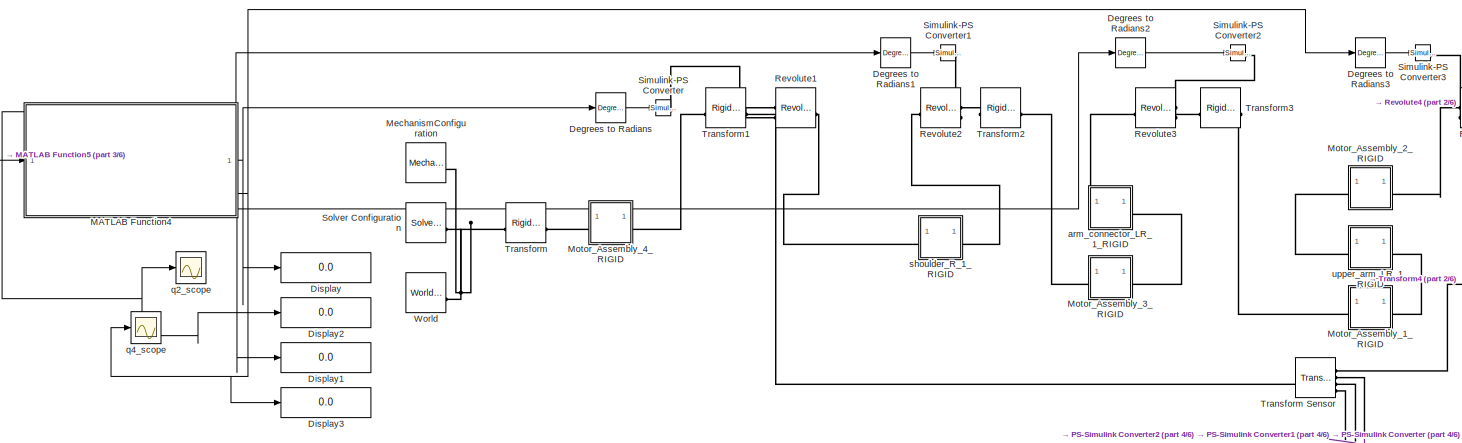
[diagram: root canvas - part 1/6, top center region]
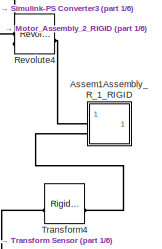
[diagram: root canvas - part 2/6, top right region]
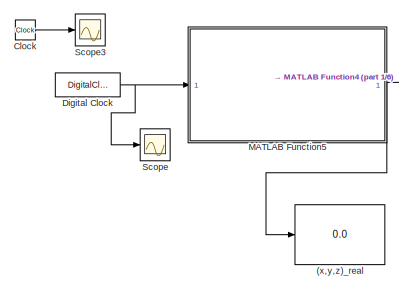
[diagram: root canvas - part 3/6, top left region]
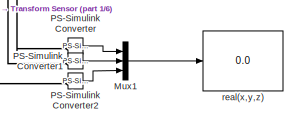
[diagram: root canvas - part 4/6, middle right region]
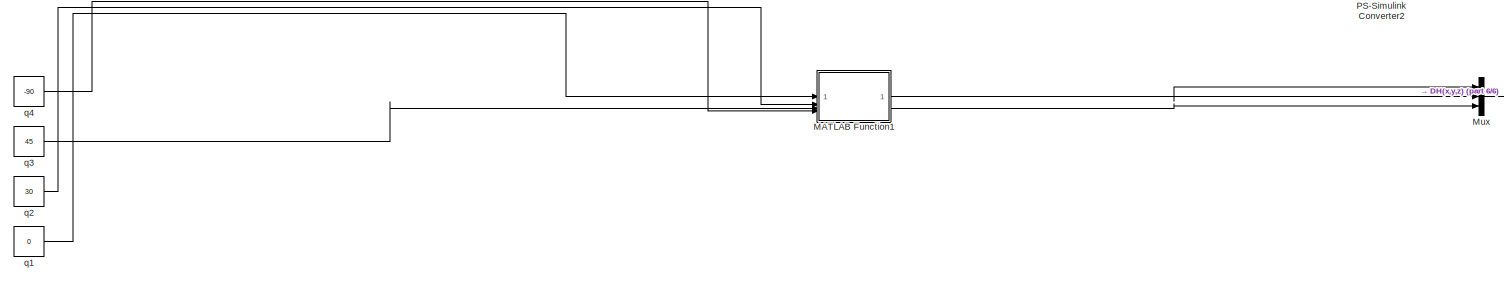
[diagram: root canvas - part 5/6, bottom center region]
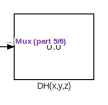
[diagram: root canvas - part 6/6, bottom right region]
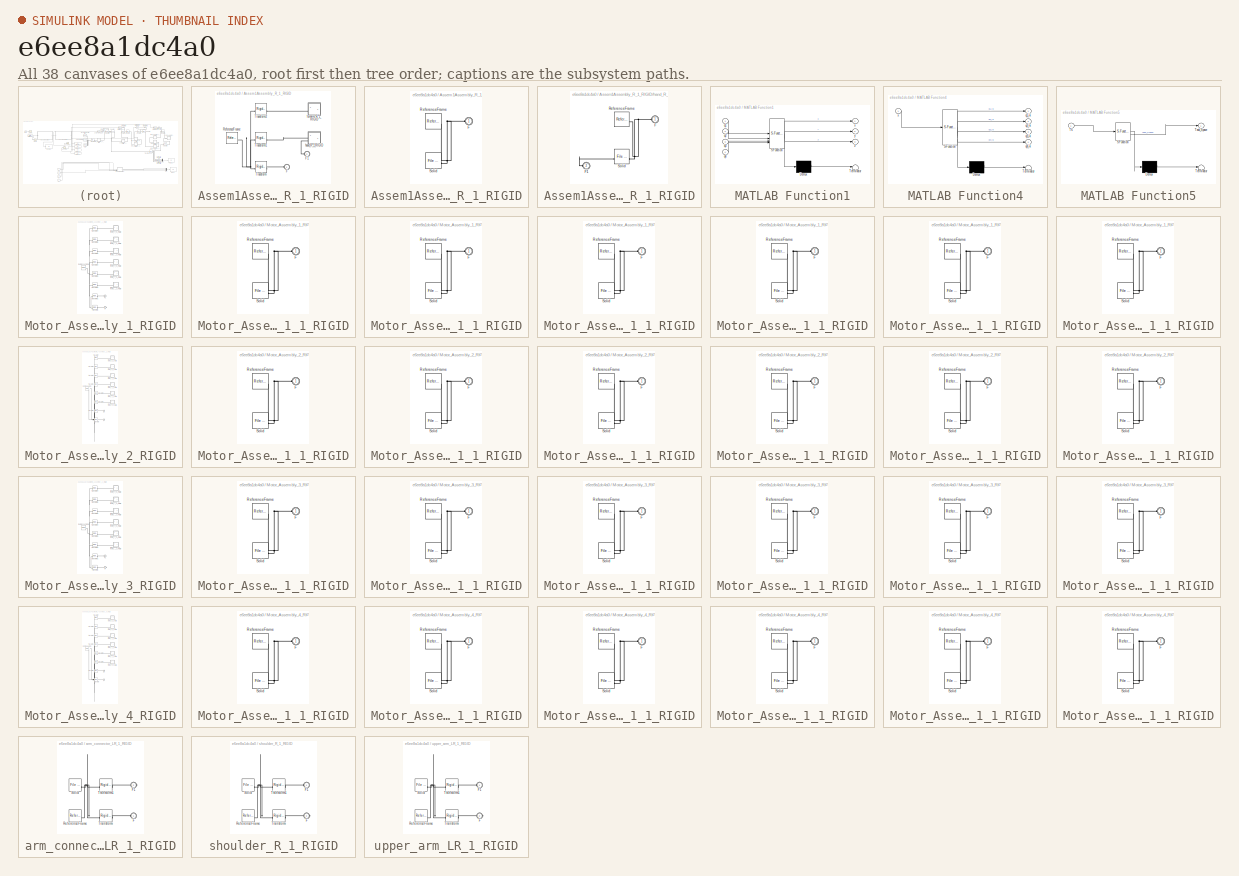
[diagram: thumbnail index - all 38 canvases of the model, root first then tree order]
MODEL slx_e6ee8a1dc4a0
KIND model
CONFIG AbsTol = auto
CONFIG EnableMultiTasking = off
CONFIG FixedStep = auto
CONFIG MaxStep = auto
CONFIG MinStep = auto
CONFIG RelTol = 1e-3
CONFIG SampleTimeConstraint = Unconstrained
CONFIG SolverName = VariableStepAuto
CONFIG StartTime = 0.0
CONFIG StopTime = 10
WORKSPACE source: external: MATLAB File  (data not in archive)
BLOCK [Display] (x,y,z)_real
  Decimation = 1
BLOCK [SubSystem] Assem1Assembly_R_1_RIGID
BLOCK [PMIOPort] Assem1Assembly_R_1_RIGID/F
  Side = Left
BLOCK [PMIOPort] Assem1Assembly_R_1_RIGID/F1
  Port = 2
  Side = Left
BLOCK [Reference] Assem1Assembly_R_1_RIGID/ReferenceFrame  REF=sm_lib/Frames and
Transforms/Reference
Frame
  SourceBlock = sm_lib/Frames and\nTransforms/Reference\nFrame
  SourceType = Reference\nFrame
BLOCK [Reference] Assem1Assembly_R_1_RIGID/Transform  REF=sm_lib/Frames and
Transforms/Rigid
Transform
  SourceBlock = sm_lib/Frames and\nTransforms/Rigid\nTransform
  SourceType = Rigid\nTransform
BLOCK [Reference] Assem1Assembly_R_1_RIGID/Transform1  REF=sm_lib/Frames and
Transforms/Rigid
Transform
  SourceBlock = sm_lib/Frames and\nTransforms/Rigid\nTransform
  SourceType = Rigid\nTransform
BLOCK [Reference] Assem1Assembly_R_1_RIGID/Transform2  REF=sm_lib/Frames and
Transforms/Rigid
Transform
  SourceBlock = sm_lib/Frames and\nTransforms/Rigid\nTransform
  SourceType = Rigid\nTransform
BLOCK [SubSystem] Assem1Assembly_R_1_RIGID/forearm_R_1_RIGID
BLOCK [PMIOPort] Assem1Assembly_R_1_RIGID/forearm_R_1_RIGID/F
  Side = Left
BLOCK [Reference] Assem1Assembly_R_1_RIGID/forearm_R_1_RIGID/ReferenceFrame  REF=sm_lib/Frames and
Transforms/Reference
Frame
  SourceBlock = sm_lib/Frames and\nTransforms/Reference\nFrame
  SourceType = Reference\nFrame
BLOCK [Reference] Assem1Assembly_R_1_RIGID/forearm_R_1_RIGID/Solid  REF=sm_lib/Body Elements/File Solid
  SourceBlock = sm_lib/Body Elements/File Solid
  SourceType = File Solid
BLOCK [SubSystem] Assem1Assembly_R_1_RIGID/hand_R_1_RIGID
BLOCK [PMIOPort] Assem1Assembly_R_1_RIGID/hand_R_1_RIGID/F
  Side = Left
BLOCK [PMIOPort] Assem1Assembly_R_1_RIGID/hand_R_1_RIGID/F1
  Port = 2
  Side = Left
BLOCK [Reference] Assem1Assembly_R_1_RIGID/hand_R_1_RIGID/ReferenceFrame  REF=sm_lib/Frames and
Transforms/Reference
Frame
  SourceBlock = sm_lib/Frames and\nTransforms/Reference\nFrame
  SourceType = Reference\nFrame
BLOCK [Reference] Assem1Assembly_R_1_RIGID/hand_R_1_RIGID/Solid  REF=sm_lib/Body Elements/File Solid
  SourceBlock = sm_lib/Body Elements/File Solid
  SourceType = File Solid
BLOCK [Clock] Clock
  Decimation = 1
BLOCK [Display] DH(x,y,z)
  Decimation = 1
BLOCK [Reference] Degrees to Radians  REF=simulink_extras/Transformations/Degrees to
Radians
  SourceBlock = simulink_extras/Transformations/Degrees to\nRadians
  SourceType = DegreesToRadians
BLOCK [Reference] Degrees to Radians1  REF=simulink_extras/Transformations/Degrees to
Radians
  SourceBlock = simulink_extras/Transformations/Degrees to\nRadians
  SourceType = DegreesToRadians
BLOCK [Reference] Degrees to Radians2  REF=simulink_extras/Transformations/Degrees to
Radians
  SourceBlock = simulink_extras/Transformations/Degrees to\nRadians
  SourceType = DegreesToRadians
BLOCK [Reference] Degrees to Radians3  REF=simulink_extras/Transformations/Degrees to
Radians
  SourceBlock = simulink_extras/Transformations/Degrees to\nRadians
  SourceType = DegreesToRadians
BLOCK [DigitalClock] Digital Clock
  SampleTime = 0.1
BLOCK [Display] Display
  Decimation = 1
BLOCK [Display] Display1
  Decimation = 1
BLOCK [Display] Display2
  Decimation = 1
BLOCK [Display] Display3
  Decimation = 1
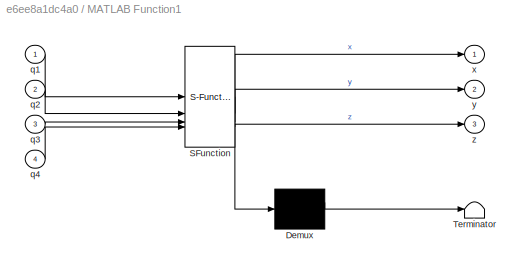
BLOCK [SubSystem] MATLAB Function1
  ErrorFcn = Stateflow.Translate.translate
  PermitHierarchicalResolution = ExplicitOnly
  SFBlockType = MATLAB Function
  TreatAsAtomicUnit = on
BLOCK [Demux] MATLAB Function1/ Demux 
  Outputs = 1
BLOCK [S-Function] MATLAB Function1/ SFunction 
  EnableBusSupport = on
  FunctionName = sf_sfun
  PortCounts = [4 4]
  SFcnIsStateOwnerBlock = off
  SFunctionDeploymentMode = off
  Tag = Stateflow S-Function 1
BLOCK [Terminator] MATLAB Function1/ Terminator 
BLOCK [Inport] MATLAB Function1/q1
BLOCK [Inport] MATLAB Function1/q2
  Port = 2
BLOCK [Inport] MATLAB Function1/q3
  Port = 3
BLOCK [Inport] MATLAB Function1/q4
  Port = 4
BLOCK [Outport] MATLAB Function1/x
BLOCK [Outport] MATLAB Function1/y
  Port = 2
BLOCK [Outport] MATLAB Function1/z
  Port = 3
BLOCK [SubSystem] MATLAB Function4
  ErrorFcn = Stateflow.Translate.translate
  PermitHierarchicalResolution = ExplicitOnly
  SFBlockType = MATLAB Function
  TreatAsAtomicUnit = on
BLOCK [Demux] MATLAB Function4/ Demux 
  Outputs = 1
BLOCK [S-Function] MATLAB Function4/ SFunction 
  EnableBusSupport = on
  FunctionName = sf_sfun
  PortCounts = [1 5]
  SFcnIsStateOwnerBlock = off
  SFunctionDeploymentMode = off
  Tag = Stateflow S-Function 5
BLOCK [Terminator] MATLAB Function4/ Terminator 
BLOCK [Outport] MATLAB Function4/q1_ik
BLOCK [Outport] MATLAB Function4/q2_ik
  Port = 2
BLOCK [Outport] MATLAB Function4/q3_ik
  Port = 3
BLOCK [Outport] MATLAB Function4/q4_ik
  Port = 4
BLOCK [Inport] MATLAB Function4/x
BLOCK [SubSystem] MATLAB Function5
  ErrorFcn = Stateflow.Translate.translate
  LibrarySourceBlock = simulink/User-Defined\nFunctions/MATLAB Function
  PermitHierarchicalResolution = ExplicitOnly
  SFBlockType = MATLAB Function
  TreatAsAtomicUnit = on
BLOCK [Demux] MATLAB Function5/ Demux 
  Outputs = 1
BLOCK [S-Function] MATLAB Function5/ SFunction 
  EnableBusSupport = on
  FunctionName = sf_sfun
  PortCounts = [1 2]
  SFcnIsStateOwnerBlock = off
  SFunctionDeploymentMode = off
  Tag = Stateflow S-Function 6
BLOCK [Terminator] MATLAB Function5/ Terminator 
BLOCK [Outport] MATLAB Function5/Task_Space
BLOCK [Inport] MATLAB Function5/Ts
BLOCK [Reference] MechanismConfiguration  REF=sm_lib/Utilities/Mechanism
Configuration
  SourceBlock = sm_lib/Utilities/Mechanism\nConfiguration
  SourceType = Mechanism\nConfiguration
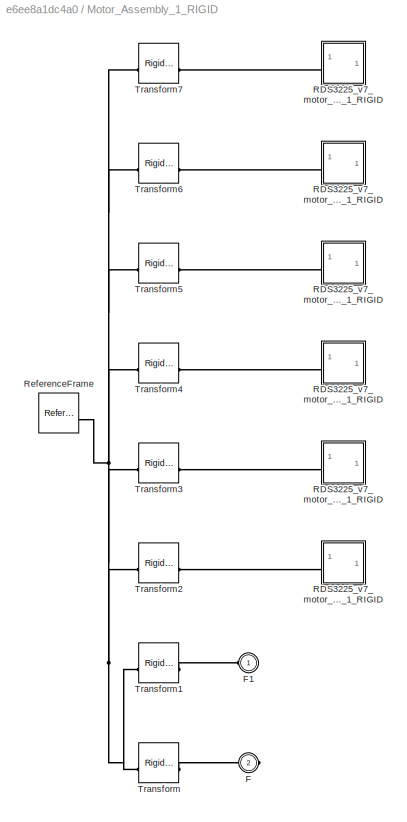
BLOCK [SubSystem] Motor_Assembly_1_RIGID
BLOCK [PMIOPort] Motor_Assembly_1_RIGID/F
  Port = 2
  Side = Right
BLOCK [PMIOPort] Motor_Assembly_1_RIGID/F1
  Side = Left
BLOCK [SubSystem] Motor_Assembly_1_RIGID/RDS3225_v7_motor_RDS3225_v7_step_1_Gear_25R0_00_step_1_1_RIGID
BLOCK [PMIOPort] Motor_Assembly_1_RIGID/RDS3225_v7_motor_RDS3225_v7_step_1_Gear_25R0_00_step_1_1_RIGID/F
  Side = Left
BLOCK [Reference] Motor_Assembly_1_RIGID/RDS3225_v7_motor_RDS3225_v7_step_1_Gear_25R0_00_step_1_1_RIGID/ReferenceFrame  REF=sm_lib/Frames and
Transforms/Reference
Frame
  SourceBlock = sm_lib/Frames and\nTransforms/Reference\nFrame
  SourceType = Reference\nFrame
BLOCK [Reference] Motor_Assembly_1_RIGID/RDS3225_v7_motor_RDS3225_v7_step_1_Gear_25R0_00_step_1_1_RIGID/Solid  REF=sm_lib/Body Elements/File Solid
  SourceBlock = sm_lib/Body Elements/File Solid
  SourceType = File Solid
BLOCK [SubSystem] Motor_Assembly_1_RIGID/RDS3225_v7_motor_RDS3225_v7_step_1_RDS3225_0_step_1_1_RIGID
BLOCK [PMIOPort] Motor_Assembly_1_RIGID/RDS3225_v7_motor_RDS3225_v7_step_1_RDS3225_0_step_1_1_RIGID/F
  Side = Left
BLOCK [Reference] Motor_Assembly_1_RIGID/RDS3225_v7_motor_RDS3225_v7_step_1_RDS3225_0_step_1_1_RIGID/ReferenceFrame  REF=sm_lib/Frames and
Transforms/Reference
Frame
  SourceBlock = sm_lib/Frames and\nTransforms/Reference\nFrame
  SourceType = Reference\nFrame
BLOCK [Reference] Motor_Assembly_1_RIGID/RDS3225_v7_motor_RDS3225_v7_step_1_RDS3225_0_step_1_1_RIGID/Solid  REF=sm_lib/Body Elements/File Solid
  SourceBlock = sm_lib/Body Elements/File Solid
  SourceType = File Solid
BLOCK [SubSystem] Motor_Assembly_1_RIGID/RDS3225_v7_motor_RDS3225_v7_step_1_RDS3225_1_step_1_1_RIGID
BLOCK [PMIOPort] Motor_Assembly_1_RIGID/RDS3225_v7_motor_RDS3225_v7_step_1_RDS3225_1_step_1_1_RIGID/F
  Side = Left
BLOCK [Reference] Motor_Assembly_1_RIGID/RDS3225_v7_motor_RDS3225_v7_step_1_RDS3225_1_step_1_1_RIGID/ReferenceFrame  REF=sm_lib/Frames and
Transforms/Reference
Frame
  SourceBlock = sm_lib/Frames and\nTransforms/Reference\nFrame
  SourceType = Reference\nFrame
BLOCK [Reference] Motor_Assembly_1_RIGID/RDS3225_v7_motor_RDS3225_v7_step_1_RDS3225_1_step_1_1_RIGID/Solid  REF=sm_lib/Body Elements/File Solid
  SourceBlock = sm_lib/Body Elements/File Solid
  SourceType = File Solid
BLOCK [SubSystem] Motor_Assembly_1_RIGID/RDS3225_v7_motor_RDS3225_v7_step_1_RDS3225_step_1_1_RIGID
BLOCK [PMIOPort] Motor_Assembly_1_RIGID/RDS3225_v7_motor_RDS3225_v7_step_1_RDS3225_step_1_1_RIGID/F
  Side = Left
BLOCK [Reference] Motor_Assembly_1_RIGID/RDS3225_v7_motor_RDS3225_v7_step_1_RDS3225_step_1_1_RIGID/ReferenceFrame  REF=sm_lib/Frames and
Transforms/Reference
Frame
  SourceBlock = sm_lib/Frames and\nTransforms/Reference\nFrame
  SourceType = Reference\nFrame
BLOCK [Reference] Motor_Assembly_1_RIGID/RDS3225_v7_motor_RDS3225_v7_step_1_RDS3225_step_1_1_RIGID/Solid  REF=sm_lib/Body Elements/File Solid
  SourceBlock = sm_lib/Body Elements/File Solid
  SourceType = File Solid
BLOCK [SubSystem] Motor_Assembly_1_RIGID/RDS3225_v7_motor_RDS3225_v7_step_1_Wheel_gear_step_1_1_RIGID
BLOCK [PMIOPort] Motor_Assembly_1_RIGID/RDS3225_v7_motor_RDS3225_v7_step_1_Wheel_gear_step_1_1_RIGID/F
  Side = Left
BLOCK [Reference] Motor_Assembly_1_RIGID/RDS3225_v7_motor_RDS3225_v7_step_1_Wheel_gear_step_1_1_RIGID/ReferenceFrame  REF=sm_lib/Frames and
Transforms/Reference
Frame
  SourceBlock = sm_lib/Frames and\nTransforms/Reference\nFrame
  SourceType = Reference\nFrame
BLOCK [Reference] Motor_Assembly_1_RIGID/RDS3225_v7_motor_RDS3225_v7_step_1_Wheel_gear_step_1_1_RIGID/Solid  REF=sm_lib/Body Elements/File Solid
  SourceBlock = sm_lib/Body Elements/File Solid
  SourceType = File Solid
BLOCK [SubSystem] Motor_Assembly_1_RIGID/RDS3225_v7_motor_RDS3225_v7_step_1_Wheel_step_1_1_RIGID
BLOCK [PMIOPort] Motor_Assembly_1_RIGID/RDS3225_v7_motor_RDS3225_v7_step_1_Wheel_step_1_1_RIGID/F
  Side = Left
BLOCK [Reference] Motor_Assembly_1_RIGID/RDS3225_v7_motor_RDS3225_v7_step_1_Wheel_step_1_1_RIGID/ReferenceFrame  REF=sm_lib/Frames and
Transforms/Reference
Frame
  SourceBlock = sm_lib/Frames and\nTransforms/Reference\nFrame
  SourceType = Reference\nFrame
BLOCK [Reference] Motor_Assembly_1_RIGID/RDS3225_v7_motor_RDS3225_v7_step_1_Wheel_step_1_1_RIGID/Solid  REF=sm_lib/Body Elements/File Solid
  SourceBlock = sm_lib/Body Elements/File Solid
  SourceType = File Solid
BLOCK [Reference] Motor_Assembly_1_RIGID/ReferenceFrame  REF=sm_lib/Frames and
Transforms/Reference
Frame
  SourceBlock = sm_lib/Frames and\nTransforms/Reference\nFrame
  SourceType = Reference\nFrame
BLOCK [Reference] Motor_Assembly_1_RIGID/Transform  REF=sm_lib/Frames and
Transforms/Rigid
Transform
  SourceBlock = sm_lib/Frames and\nTransforms/Rigid\nTransform
  SourceType = Rigid\nTransform
BLOCK [Reference] Motor_Assembly_1_RIGID/Transform1  REF=sm_lib/Frames and
Transforms/Rigid
Transform
  SourceBlock = sm_lib/Frames and\nTransforms/Rigid\nTransform
  SourceType = Rigid\nTransform
BLOCK [Reference] Motor_Assembly_1_RIGID/Transform2  REF=sm_lib/Frames and
Transforms/Rigid
Transform
  SourceBlock = sm_lib/Frames and\nTransforms/Rigid\nTransform
  SourceType = Rigid\nTransform
BLOCK [Reference] Motor_Assembly_1_RIGID/Transform3  REF=sm_lib/Frames and
Transforms/Rigid
Transform
  SourceBlock = sm_lib/Frames and\nTransforms/Rigid\nTransform
  SourceType = Rigid\nTransform
BLOCK [Reference] Motor_Assembly_1_RIGID/Transform4  REF=sm_lib/Frames and
Transforms/Rigid
Transform
  SourceBlock = sm_lib/Frames and\nTransforms/Rigid\nTransform
  SourceType = Rigid\nTransform
BLOCK [Reference] Motor_Assembly_1_RIGID/Transform5  REF=sm_lib/Frames and
Transforms/Rigid
Transform
  SourceBlock = sm_lib/Frames and\nTransforms/Rigid\nTransform
  SourceType = Rigid\nTransform
BLOCK [Reference] Motor_Assembly_1_RIGID/Transform6  REF=sm_lib/Frames and
Transforms/Rigid
Transform
  SourceBlock = sm_lib/Frames and\nTransforms/Rigid\nTransform
  SourceType = Rigid\nTransform
BLOCK [Reference] Motor_Assembly_1_RIGID/Transform7  REF=sm_lib/Frames and
Transforms/Rigid
Transform
  SourceBlock = sm_lib/Frames and\nTransforms/Rigid\nTransform
  SourceType = Rigid\nTransform
BLOCK [SubSystem] Motor_Assembly_2_RIGID
BLOCK [PMIOPort] Motor_Assembly_2_RIGID/F
  Port = 2
  Side = Right
BLOCK [PMIOPort] Motor_Assembly_2_RIGID/F1
  Side = Left
BLOCK [SubSystem] Motor_Assembly_2_RIGID/RDS3225_v7_motor_RDS3225_v7_step_1_Gear_25R0_00_step_1_1_RIGID
BLOCK [PMIOPort] Motor_Assembly_2_RIGID/RDS3225_v7_motor_RDS3225_v7_step_1_Gear_25R0_00_step_1_1_RIGID/F
  Side = Left
BLOCK [Reference] Motor_Assembly_2_RIGID/RDS3225_v7_motor_RDS3225_v7_step_1_Gear_25R0_00_step_1_1_RIGID/ReferenceFrame  REF=sm_lib/Frames and
Transforms/Reference
Frame
  SourceBlock = sm_lib/Frames and\nTransforms/Reference\nFrame
  SourceType = Reference\nFrame
BLOCK [Reference] Motor_Assembly_2_RIGID/RDS3225_v7_motor_RDS3225_v7_step_1_Gear_25R0_00_step_1_1_RIGID/Solid  REF=sm_lib/Body Elements/File Solid
  SourceBlock = sm_lib/Body Elements/File Solid
  SourceType = File Solid
BLOCK [SubSystem] Motor_Assembly_2_RIGID/RDS3225_v7_motor_RDS3225_v7_step_1_RDS3225_0_step_1_1_RIGID
BLOCK [PMIOPort] Motor_Assembly_2_RIGID/RDS3225_v7_motor_RDS3225_v7_step_1_RDS3225_0_step_1_1_RIGID/F
  Side = Left
BLOCK [Reference] Motor_Assembly_2_RIGID/RDS3225_v7_motor_RDS3225_v7_step_1_RDS3225_0_step_1_1_RIGID/ReferenceFrame  REF=sm_lib/Frames and
Transforms/Reference
Frame
  SourceBlock = sm_lib/Frames and\nTransforms/Reference\nFrame
  SourceType = Reference\nFrame
BLOCK [Reference] Motor_Assembly_2_RIGID/RDS3225_v7_motor_RDS3225_v7_step_1_RDS3225_0_step_1_1_RIGID/Solid  REF=sm_lib/Body Elements/File Solid
  SourceBlock = sm_lib/Body Elements/File Solid
  SourceType = File Solid
BLOCK [SubSystem] Motor_Assembly_2_RIGID/RDS3225_v7_motor_RDS3225_v7_step_1_RDS3225_1_step_1_1_RIGID
BLOCK [PMIOPort] Motor_Assembly_2_RIGID/RDS3225_v7_motor_RDS3225_v7_step_1_RDS3225_1_step_1_1_RIGID/F
  Side = Left
BLOCK [Reference] Motor_Assembly_2_RIGID/RDS3225_v7_motor_RDS3225_v7_step_1_RDS3225_1_step_1_1_RIGID/ReferenceFrame  REF=sm_lib/Frames and
Transforms/Reference
Frame
  SourceBlock = sm_lib/Frames and\nTransforms/Reference\nFrame
  SourceType = Reference\nFrame
BLOCK [Reference] Motor_Assembly_2_RIGID/RDS3225_v7_motor_RDS3225_v7_step_1_RDS3225_1_step_1_1_RIGID/Solid  REF=sm_lib/Body Elements/File Solid
  SourceBlock = sm_lib/Body Elements/File Solid
  SourceType = File Solid
BLOCK [SubSystem] Motor_Assembly_2_RIGID/RDS3225_v7_motor_RDS3225_v7_step_1_RDS3225_step_1_1_RIGID
BLOCK [PMIOPort] Motor_Assembly_2_RIGID/RDS3225_v7_motor_RDS3225_v7_step_1_RDS3225_step_1_1_RIGID/F
  Side = Left
BLOCK [Reference] Motor_Assembly_2_RIGID/RDS3225_v7_motor_RDS3225_v7_step_1_RDS3225_step_1_1_RIGID/ReferenceFrame  REF=sm_lib/Frames and
Transforms/Reference
Frame
  SourceBlock = sm_lib/Frames and\nTransforms/Reference\nFrame
  SourceType = Reference\nFrame
BLOCK [Reference] Motor_Assembly_2_RIGID/RDS3225_v7_motor_RDS3225_v7_step_1_RDS3225_step_1_1_RIGID/Solid  REF=sm_lib/Body Elements/File Solid
  SourceBlock = sm_lib/Body Elements/File Solid
  SourceType = File Solid
BLOCK [SubSystem] Motor_Assembly_2_RIGID/RDS3225_v7_motor_RDS3225_v7_step_1_Wheel_gear_step_1_1_RIGID
BLOCK [PMIOPort] Motor_Assembly_2_RIGID/RDS3225_v7_motor_RDS3225_v7_step_1_Wheel_gear_step_1_1_RIGID/F
  Side = Left
BLOCK [Reference] Motor_Assembly_2_RIGID/RDS3225_v7_motor_RDS3225_v7_step_1_Wheel_gear_step_1_1_RIGID/ReferenceFrame  REF=sm_lib/Frames and
Transforms/Reference
Frame
  SourceBlock = sm_lib/Frames and\nTransforms/Reference\nFrame
  SourceType = Reference\nFrame
BLOCK [Reference] Motor_Assembly_2_RIGID/RDS3225_v7_motor_RDS3225_v7_step_1_Wheel_gear_step_1_1_RIGID/Solid  REF=sm_lib/Body Elements/File Solid
  SourceBlock = sm_lib/Body Elements/File Solid
  SourceType = File Solid
BLOCK [SubSystem] Motor_Assembly_2_RIGID/RDS3225_v7_motor_RDS3225_v7_step_1_Wheel_step_1_1_RIGID
BLOCK [PMIOPort] Motor_Assembly_2_RIGID/RDS3225_v7_motor_RDS3225_v7_step_1_Wheel_step_1_1_RIGID/F
  Side = Left
BLOCK [Reference] Motor_Assembly_2_RIGID/RDS3225_v7_motor_RDS3225_v7_step_1_Wheel_step_1_1_RIGID/ReferenceFrame  REF=sm_lib/Frames and
Transforms/Reference
Frame
  SourceBlock = sm_lib/Frames and\nTransforms/Reference\nFrame
  SourceType = Reference\nFrame
BLOCK [Reference] Motor_Assembly_2_RIGID/RDS3225_v7_motor_RDS3225_v7_step_1_Wheel_step_1_1_RIGID/Solid  REF=sm_lib/Body Elements/File Solid
  SourceBlock = sm_lib/Body Elements/File Solid
  SourceType = File Solid
BLOCK [Reference] Motor_Assembly_2_RIGID/ReferenceFrame  REF=sm_lib/Frames and
Transforms/Reference
Frame
  SourceBlock = sm_lib/Frames and\nTransforms/Reference\nFrame
  SourceType = Reference\nFrame
BLOCK [Reference] Motor_Assembly_2_RIGID/Transform  REF=sm_lib/Frames and
Transforms/Rigid
Transform
  SourceBlock = sm_lib/Frames and\nTransforms/Rigid\nTransform
  SourceType = Rigid\nTransform
BLOCK [Reference] Motor_Assembly_2_RIGID/Transform1  REF=sm_lib/Frames and
Transforms/Rigid
Transform
  SourceBlock = sm_lib/Frames and\nTransforms/Rigid\nTransform
  SourceType = Rigid\nTransform
BLOCK [Reference] Motor_Assembly_2_RIGID/Transform2  REF=sm_lib/Frames and
Transforms/Rigid
Transform
  SourceBlock = sm_lib/Frames and\nTransforms/Rigid\nTransform
  SourceType = Rigid\nTransform
BLOCK [Reference] Motor_Assembly_2_RIGID/Transform3  REF=sm_lib/Frames and
Transforms/Rigid
Transform
  SourceBlock = sm_lib/Frames and\nTransforms/Rigid\nTransform
  SourceType = Rigid\nTransform
BLOCK [Reference] Motor_Assembly_2_RIGID/Transform4  REF=sm_lib/Frames and
Transforms/Rigid
Transform
  SourceBlock = sm_lib/Frames and\nTransforms/Rigid\nTransform
  SourceType = Rigid\nTransform
BLOCK [Reference] Motor_Assembly_2_RIGID/Transform5  REF=sm_lib/Frames and
Transforms/Rigid
Transform
  SourceBlock = sm_lib/Frames and\nTransforms/Rigid\nTransform
  SourceType = Rigid\nTransform
BLOCK [Reference] Motor_Assembly_2_RIGID/Transform6  REF=sm_lib/Frames and
Transforms/Rigid
Transform
  SourceBlock = sm_lib/Frames and\nTransforms/Rigid\nTransform
  SourceType = Rigid\nTransform
BLOCK [Reference] Motor_Assembly_2_RIGID/Transform7  REF=sm_lib/Frames and
Transforms/Rigid
Transform
  SourceBlock = sm_lib/Frames and\nTransforms/Rigid\nTransform
  SourceType = Rigid\nTransform
BLOCK [SubSystem] Motor_Assembly_3_RIGID
BLOCK [PMIOPort] Motor_Assembly_3_RIGID/F
  Port = 2
  Side = Right
BLOCK [PMIOPort] Motor_Assembly_3_RIGID/F1
  Side = Left
BLOCK [SubSystem] Motor_Assembly_3_RIGID/RDS3225_v7_motor_RDS3225_v7_step_1_Gear_25R0_00_step_1_1_RIGID
BLOCK [PMIOPort] Motor_Assembly_3_RIGID/RDS3225_v7_motor_RDS3225_v7_step_1_Gear_25R0_00_step_1_1_RIGID/F
  Side = Left
BLOCK [Reference] Motor_Assembly_3_RIGID/RDS3225_v7_motor_RDS3225_v7_step_1_Gear_25R0_00_step_1_1_RIGID/ReferenceFrame  REF=sm_lib/Frames and
Transforms/Reference
Frame
  SourceBlock = sm_lib/Frames and\nTransforms/Reference\nFrame
  SourceType = Reference\nFrame
BLOCK [Reference] Motor_Assembly_3_RIGID/RDS3225_v7_motor_RDS3225_v7_step_1_Gear_25R0_00_step_1_1_RIGID/Solid  REF=sm_lib/Body Elements/File Solid
  SourceBlock = sm_lib/Body Elements/File Solid
  SourceType = File Solid
BLOCK [SubSystem] Motor_Assembly_3_RIGID/RDS3225_v7_motor_RDS3225_v7_step_1_RDS3225_0_step_1_1_RIGID
BLOCK [PMIOPort] Motor_Assembly_3_RIGID/RDS3225_v7_motor_RDS3225_v7_step_1_RDS3225_0_step_1_1_RIGID/F
  Side = Left
BLOCK [Reference] Motor_Assembly_3_RIGID/RDS3225_v7_motor_RDS3225_v7_step_1_RDS3225_0_step_1_1_RIGID/ReferenceFrame  REF=sm_lib/Frames and
Transforms/Reference
Frame
  SourceBlock = sm_lib/Frames and\nTransforms/Reference\nFrame
  SourceType = Reference\nFrame
BLOCK [Reference] Motor_Assembly_3_RIGID/RDS3225_v7_motor_RDS3225_v7_step_1_RDS3225_0_step_1_1_RIGID/Solid  REF=sm_lib/Body Elements/File Solid
  SourceBlock = sm_lib/Body Elements/File Solid
  SourceType = File Solid
BLOCK [SubSystem] Motor_Assembly_3_RIGID/RDS3225_v7_motor_RDS3225_v7_step_1_RDS3225_1_step_1_1_RIGID
BLOCK [PMIOPort] Motor_Assembly_3_RIGID/RDS3225_v7_motor_RDS3225_v7_step_1_RDS3225_1_step_1_1_RIGID/F
  Side = Left
BLOCK [Reference] Motor_Assembly_3_RIGID/RDS3225_v7_motor_RDS3225_v7_step_1_RDS3225_1_step_1_1_RIGID/ReferenceFrame  REF=sm_lib/Frames and
Transforms/Reference
Frame
  SourceBlock = sm_lib/Frames and\nTransforms/Reference\nFrame
  SourceType = Reference\nFrame
BLOCK [Reference] Motor_Assembly_3_RIGID/RDS3225_v7_motor_RDS3225_v7_step_1_RDS3225_1_step_1_1_RIGID/Solid  REF=sm_lib/Body Elements/File Solid
  SourceBlock = sm_lib/Body Elements/File Solid
  SourceType = File Solid
BLOCK [SubSystem] Motor_Assembly_3_RIGID/RDS3225_v7_motor_RDS3225_v7_step_1_RDS3225_step_1_1_RIGID
BLOCK [PMIOPort] Motor_Assembly_3_RIGID/RDS3225_v7_motor_RDS3225_v7_step_1_RDS3225_step_1_1_RIGID/F
  Side = Left
BLOCK [Reference] Motor_Assembly_3_RIGID/RDS3225_v7_motor_RDS3225_v7_step_1_RDS3225_step_1_1_RIGID/ReferenceFrame  REF=sm_lib/Frames and
Transforms/Reference
Frame
  SourceBlock = sm_lib/Frames and\nTransforms/Reference\nFrame
  SourceType = Reference\nFrame
BLOCK [Reference] Motor_Assembly_3_RIGID/RDS3225_v7_motor_RDS3225_v7_step_1_RDS3225_step_1_1_RIGID/Solid  REF=sm_lib/Body Elements/File Solid
  SourceBlock = sm_lib/Body Elements/File Solid
  SourceType = File Solid
BLOCK [SubSystem] Motor_Assembly_3_RIGID/RDS3225_v7_motor_RDS3225_v7_step_1_Wheel_gear_step_1_1_RIGID
BLOCK [PMIOPort] Motor_Assembly_3_RIGID/RDS3225_v7_motor_RDS3225_v7_step_1_Wheel_gear_step_1_1_RIGID/F
  Side = Left
BLOCK [Reference] Motor_Assembly_3_RIGID/RDS3225_v7_motor_RDS3225_v7_step_1_Wheel_gear_step_1_1_RIGID/ReferenceFrame  REF=sm_lib/Frames and
Transforms/Reference
Frame
  SourceBlock = sm_lib/Frames and\nTransforms/Reference\nFrame
  SourceType = Reference\nFrame
BLOCK [Reference] Motor_Assembly_3_RIGID/RDS3225_v7_motor_RDS3225_v7_step_1_Wheel_gear_step_1_1_RIGID/Solid  REF=sm_lib/Body Elements/File Solid
  SourceBlock = sm_lib/Body Elements/File Solid
  SourceType = File Solid
BLOCK [SubSystem] Motor_Assembly_3_RIGID/RDS3225_v7_motor_RDS3225_v7_step_1_Wheel_step_1_1_RIGID
BLOCK [PMIOPort] Motor_Assembly_3_RIGID/RDS3225_v7_motor_RDS3225_v7_step_1_Wheel_step_1_1_RIGID/F
  Side = Left
BLOCK [Reference] Motor_Assembly_3_RIGID/RDS3225_v7_motor_RDS3225_v7_step_1_Wheel_step_1_1_RIGID/ReferenceFrame  REF=sm_lib/Frames and
Transforms/Reference
Frame
  SourceBlock = sm_lib/Frames and\nTransforms/Reference\nFrame
  SourceType = Reference\nFrame
BLOCK [Reference] Motor_Assembly_3_RIGID/RDS3225_v7_motor_RDS3225_v7_step_1_Wheel_step_1_1_RIGID/Solid  REF=sm_lib/Body Elements/File Solid
  SourceBlock = sm_lib/Body Elements/File Solid
  SourceType = File Solid
BLOCK [Reference] Motor_Assembly_3_RIGID/ReferenceFrame  REF=sm_lib/Frames and
Transforms/Reference
Frame
  SourceBlock = sm_lib/Frames and\nTransforms/Reference\nFrame
  SourceType = Reference\nFrame
BLOCK [Reference] Motor_Assembly_3_RIGID/Transform  REF=sm_lib/Frames and
Transforms/Rigid
Transform
  SourceBlock = sm_lib/Frames and\nTransforms/Rigid\nTransform
  SourceType = Rigid\nTransform
BLOCK [Reference] Motor_Assembly_3_RIGID/Transform1  REF=sm_lib/Frames and
Transforms/Rigid
Transform
  SourceBlock = sm_lib/Frames and\nTransforms/Rigid\nTransform
  SourceType = Rigid\nTransform
BLOCK [Reference] Motor_Assembly_3_RIGID/Transform2  REF=sm_lib/Frames and
Transforms/Rigid
Transform
  SourceBlock = sm_lib/Frames and\nTransforms/Rigid\nTransform
  SourceType = Rigid\nTransform
BLOCK [Reference] Motor_Assembly_3_RIGID/Transform3  REF=sm_lib/Frames and
Transforms/Rigid
Transform
  SourceBlock = sm_lib/Frames and\nTransforms/Rigid\nTransform
  SourceType = Rigid\nTransform
BLOCK [Reference] Motor_Assembly_3_RIGID/Transform4  REF=sm_lib/Frames and
Transforms/Rigid
Transform
  SourceBlock = sm_lib/Frames and\nTransforms/Rigid\nTransform
  SourceType = Rigid\nTransform
BLOCK [Reference] Motor_Assembly_3_RIGID/Transform5  REF=sm_lib/Frames and
Transforms/Rigid
Transform
  SourceBlock = sm_lib/Frames and\nTransforms/Rigid\nTransform
  SourceType = Rigid\nTransform
BLOCK [Reference] Motor_Assembly_3_RIGID/Transform6  REF=sm_lib/Frames and
Transforms/Rigid
Transform
  SourceBlock = sm_lib/Frames and\nTransforms/Rigid\nTransform
  SourceType = Rigid\nTransform
BLOCK [Reference] Motor_Assembly_3_RIGID/Transform7  REF=sm_lib/Frames and
Transforms/Rigid
Transform
  SourceBlock = sm_lib/Frames and\nTransforms/Rigid\nTransform
  SourceType = Rigid\nTransform
BLOCK [SubSystem] Motor_Assembly_4_RIGID
BLOCK [PMIOPort] Motor_Assembly_4_RIGID/F
  Side = Left
BLOCK [PMIOPort] Motor_Assembly_4_RIGID/F1
  Port = 2
  Side = Right
BLOCK [SubSystem] Motor_Assembly_4_RIGID/RDS3225_v7_motor_RDS3225_v7_step_1_Gear_25R0_00_step_1_1_RIGID
BLOCK [PMIOPort] Motor_Assembly_4_RIGID/RDS3225_v7_motor_RDS3225_v7_step_1_Gear_25R0_00_step_1_1_RIGID/F
  Side = Left
BLOCK [Reference] Motor_Assembly_4_RIGID/RDS3225_v7_motor_RDS3225_v7_step_1_Gear_25R0_00_step_1_1_RIGID/ReferenceFrame  REF=sm_lib/Frames and
Transforms/Reference
Frame
  SourceBlock = sm_lib/Frames and\nTransforms/Reference\nFrame
  SourceType = Reference\nFrame
BLOCK [Reference] Motor_Assembly_4_RIGID/RDS3225_v7_motor_RDS3225_v7_step_1_Gear_25R0_00_step_1_1_RIGID/Solid  REF=sm_lib/Body Elements/File Solid
  SourceBlock = sm_lib/Body Elements/File Solid
  SourceType = File Solid
BLOCK [SubSystem] Motor_Assembly_4_RIGID/RDS3225_v7_motor_RDS3225_v7_step_1_RDS3225_0_step_1_1_RIGID
BLOCK [PMIOPort] Motor_Assembly_4_RIGID/RDS3225_v7_motor_RDS3225_v7_step_1_RDS3225_0_step_1_1_RIGID/F
  Side = Left
BLOCK [Reference] Motor_Assembly_4_RIGID/RDS3225_v7_motor_RDS3225_v7_step_1_RDS3225_0_step_1_1_RIGID/ReferenceFrame  REF=sm_lib/Frames and
Transforms/Reference
Frame
  SourceBlock = sm_lib/Frames and\nTransforms/Reference\nFrame
  SourceType = Reference\nFrame
BLOCK [Reference] Motor_Assembly_4_RIGID/RDS3225_v7_motor_RDS3225_v7_step_1_RDS3225_0_step_1_1_RIGID/Solid  REF=sm_lib/Body Elements/File Solid
  SourceBlock = sm_lib/Body Elements/File Solid
  SourceType = File Solid
BLOCK [SubSystem] Motor_Assembly_4_RIGID/RDS3225_v7_motor_RDS3225_v7_step_1_RDS3225_1_step_1_1_RIGID
BLOCK [PMIOPort] Motor_Assembly_4_RIGID/RDS3225_v7_motor_RDS3225_v7_step_1_RDS3225_1_step_1_1_RIGID/F
  Side = Left
BLOCK [Reference] Motor_Assembly_4_RIGID/RDS3225_v7_motor_RDS3225_v7_step_1_RDS3225_1_step_1_1_RIGID/ReferenceFrame  REF=sm_lib/Frames and
Transforms/Reference
Frame
  SourceBlock = sm_lib/Frames and\nTransforms/Reference\nFrame
  SourceType = Reference\nFrame
BLOCK [Reference] Motor_Assembly_4_RIGID/RDS3225_v7_motor_RDS3225_v7_step_1_RDS3225_1_step_1_1_RIGID/Solid  REF=sm_lib/Body Elements/File Solid
  SourceBlock = sm_lib/Body Elements/File Solid
  SourceType = File Solid
BLOCK [SubSystem] Motor_Assembly_4_RIGID/RDS3225_v7_motor_RDS3225_v7_step_1_RDS3225_step_1_1_RIGID
BLOCK [PMIOPort] Motor_Assembly_4_RIGID/RDS3225_v7_motor_RDS3225_v7_step_1_RDS3225_step_1_1_RIGID/F
  Side = Left
BLOCK [Reference] Motor_Assembly_4_RIGID/RDS3225_v7_motor_RDS3225_v7_step_1_RDS3225_step_1_1_RIGID/ReferenceFrame  REF=sm_lib/Frames and
Transforms/Reference
Frame
  SourceBlock = sm_lib/Frames and\nTransforms/Reference\nFrame
  SourceType = Reference\nFrame
BLOCK [Reference] Motor_Assembly_4_RIGID/RDS3225_v7_motor_RDS3225_v7_step_1_RDS3225_step_1_1_RIGID/Solid  REF=sm_lib/Body Elements/File Solid
  SourceBlock = sm_lib/Body Elements/File Solid
  SourceType = File Solid
BLOCK [SubSystem] Motor_Assembly_4_RIGID/RDS3225_v7_motor_RDS3225_v7_step_1_Wheel_gear_step_1_1_RIGID
BLOCK [PMIOPort] Motor_Assembly_4_RIGID/RDS3225_v7_motor_RDS3225_v7_step_1_Wheel_gear_step_1_1_RIGID/F
  Side = Left
BLOCK [Reference] Motor_Assembly_4_RIGID/RDS3225_v7_motor_RDS3225_v7_step_1_Wheel_gear_step_1_1_RIGID/ReferenceFrame  REF=sm_lib/Frames and
Transforms/Reference
Frame
  SourceBlock = sm_lib/Frames and\nTransforms/Reference\nFrame
  SourceType = Reference\nFrame
BLOCK [Reference] Motor_Assembly_4_RIGID/RDS3225_v7_motor_RDS3225_v7_step_1_Wheel_gear_step_1_1_RIGID/Solid  REF=sm_lib/Body Elements/File Solid
  SourceBlock = sm_lib/Body Elements/File Solid
  SourceType = File Solid
BLOCK [SubSystem] Motor_Assembly_4_RIGID/RDS3225_v7_motor_RDS3225_v7_step_1_Wheel_step_1_1_RIGID
BLOCK [PMIOPort] Motor_Assembly_4_RIGID/RDS3225_v7_motor_RDS3225_v7_step_1_Wheel_step_1_1_RIGID/F
  Side = Left
BLOCK [Reference] Motor_Assembly_4_RIGID/RDS3225_v7_motor_RDS3225_v7_step_1_Wheel_step_1_1_RIGID/ReferenceFrame  REF=sm_lib/Frames and
Transforms/Reference
Frame
  SourceBlock = sm_lib/Frames and\nTransforms/Reference\nFrame
  SourceType = Reference\nFrame
BLOCK [Reference] Motor_Assembly_4_RIGID/RDS3225_v7_motor_RDS3225_v7_step_1_Wheel_step_1_1_RIGID/Solid  REF=sm_lib/Body Elements/File Solid
  SourceBlock = sm_lib/Body Elements/File Solid
  SourceType = File Solid
BLOCK [Reference] Motor_Assembly_4_RIGID/ReferenceFrame  REF=sm_lib/Frames and
Transforms/Reference
Frame
  SourceBlock = sm_lib/Frames and\nTransforms/Reference\nFrame
  SourceType = Reference\nFrame
BLOCK [Reference] Motor_Assembly_4_RIGID/Transform  REF=sm_lib/Frames and
Transforms/Rigid
Transform
  SourceBlock = sm_lib/Frames and\nTransforms/Rigid\nTransform
  SourceType = Rigid\nTransform
BLOCK [Reference] Motor_Assembly_4_RIGID/Transform1  REF=sm_lib/Frames and
Transforms/Rigid
Transform
  SourceBlock = sm_lib/Frames and\nTransforms/Rigid\nTransform
  SourceType = Rigid\nTransform
BLOCK [Reference] Motor_Assembly_4_RIGID/Transform2  REF=sm_lib/Frames and
Transforms/Rigid
Transform
  SourceBlock = sm_lib/Frames and\nTransforms/Rigid\nTransform
  SourceType = Rigid\nTransform
BLOCK [Reference] Motor_Assembly_4_RIGID/Transform3  REF=sm_lib/Frames and
Transforms/Rigid
Transform
  SourceBlock = sm_lib/Frames and\nTransforms/Rigid\nTransform
  SourceType = Rigid\nTransform
BLOCK [Reference] Motor_Assembly_4_RIGID/Transform4  REF=sm_lib/Frames and
Transforms/Rigid
Transform
  SourceBlock = sm_lib/Frames and\nTransforms/Rigid\nTransform
  SourceType = Rigid\nTransform
BLOCK [Reference] Motor_Assembly_4_RIGID/Transform5  REF=sm_lib/Frames and
Transforms/Rigid
Transform
  SourceBlock = sm_lib/Frames and\nTransforms/Rigid\nTransform
  SourceType = Rigid\nTransform
BLOCK [Reference] Motor_Assembly_4_RIGID/Transform6  REF=sm_lib/Frames and
Transforms/Rigid
Transform
  SourceBlock = sm_lib/Frames and\nTransforms/Rigid\nTransform
  SourceType = Rigid\nTransform
BLOCK [Reference] Motor_Assembly_4_RIGID/Transform7  REF=sm_lib/Frames and
Transforms/Rigid
Transform
  SourceBlock = sm_lib/Frames and\nTransforms/Rigid\nTransform
  SourceType = Rigid\nTransform
BLOCK [Mux] Mux
  DisplayOption = bar
  Inputs = 3
BLOCK [Mux] Mux1
  DisplayOption = bar
  Inputs = 3
BLOCK [Reference] PS-Simulink Converter  REF=nesl_utility/PS-Simulink
Converter
  SourceBlock = nesl_utility/PS-Simulink\nConverter
  SourceType = PS-Simulink\nConverter
BLOCK [Reference] PS-Simulink Converter1  REF=nesl_utility/PS-Simulink
Converter
  SourceBlock = nesl_utility/PS-Simulink\nConverter
  SourceType = PS-Simulink\nConverter
BLOCK [Reference] PS-Simulink Converter2  REF=nesl_utility/PS-Simulink
Converter
  SourceBlock = nesl_utility/PS-Simulink\nConverter
  SourceType = PS-Simulink\nConverter
BLOCK [Reference] Revolute1  REF=sm_lib/Joints/Revolute Joint
  SourceBlock = sm_lib/Joints/Revolute Joint
  SourceType = Revolute Joint
BLOCK [Reference] Revolute2  REF=sm_lib/Joints/Revolute Joint
  SourceBlock = sm_lib/Joints/Revolute Joint
  SourceType = Revolute Joint
BLOCK [Reference] Revolute3  REF=sm_lib/Joints/Revolute Joint
  SourceBlock = sm_lib/Joints/Revolute Joint
  SourceType = Revolute Joint
BLOCK [Reference] Revolute4  REF=sm_lib/Joints/Revolute Joint
  SourceBlock = sm_lib/Joints/Revolute Joint
  SourceType = Revolute Joint
BLOCK [Scope] Scope
  Floating = off
  NumInputPorts = 1
  ScopeSpecificationString = Simulink.scopes.TimeScopeBlockCfg('CurrentConfiguration', extmgr.ConfigurationSet(extmgr.Configuration('Core','General UI',true),extmgr.Configuration('Core','Source UI',true),extmgr.Configuration('Sources','WiredSimulink',true),extmgr.Configuration('Visuals','Time Domain',true,'SerializedDisplays',{struct('MinYLimReal','-1.25','MaxYLimReal','11.25','YLabelReal','','MinYLimMag','0.00000','MaxYLimMa...<+1619ch>
BLOCK [Scope] Scope3
  Floating = off
  NumInputPorts = 1
  ScopeSpecificationString = Simulink.scopes.TimeScopeBlockCfg('CurrentConfiguration', extmgr.ConfigurationSet(extmgr.Configuration('Core','General UI',true),extmgr.Configuration('Core','Source UI',true),extmgr.Configuration('Sources','WiredSimulink',true,'DataLoggingVariableName','ScopeData3'),extmgr.Configuration('Visuals','Time Domain',true,'SerializedDisplays',{struct('MinYLimReal','-1.25','MaxYLimReal','11.25','YLabelRea...<+1350ch>
BLOCK [Reference] Simulink-PS Converter  REF=nesl_utility/Simulink-PS
Converter
  SourceBlock = nesl_utility/Simulink-PS\nConverter
  SourceType = Simulink-PS\nConverter
BLOCK [Reference] Simulink-PS Converter1  REF=nesl_utility/Simulink-PS
Converter
  SourceBlock = nesl_utility/Simulink-PS\nConverter
  SourceType = Simulink-PS\nConverter
BLOCK [Reference] Simulink-PS Converter2  REF=nesl_utility/Simulink-PS
Converter
  SourceBlock = nesl_utility/Simulink-PS\nConverter
  SourceType = Simulink-PS\nConverter
BLOCK [Reference] Simulink-PS Converter3  REF=nesl_utility/Simulink-PS
Converter
  SourceBlock = nesl_utility/Simulink-PS\nConverter
  SourceType = Simulink-PS\nConverter
BLOCK [Reference] Solver Configuration  REF=nesl_utility/Solver
Configuration
  SourceBlock = nesl_utility/Solver\nConfiguration
  SourceType = Solver\nConfiguration
BLOCK [Reference] Transform  REF=sm_lib/Frames and
Transforms/Rigid
Transform
  SourceBlock = sm_lib/Frames and\nTransforms/Rigid\nTransform
  SourceType = Rigid\nTransform
BLOCK [Reference] Transform Sensor  REF=sm_lib/Frames and
Transforms/Transform
Sensor
  SourceBlock = sm_lib/Frames and\nTransforms/Transform\nSensor
  SourceType = Transform\nSensor
BLOCK [Reference] Transform1  REF=sm_lib/Frames and
Transforms/Rigid
Transform
  SourceBlock = sm_lib/Frames and\nTransforms/Rigid\nTransform
  SourceType = Rigid\nTransform
BLOCK [Reference] Transform2  REF=sm_lib/Frames and
Transforms/Rigid
Transform
  SourceBlock = sm_lib/Frames and\nTransforms/Rigid\nTransform
  SourceType = Rigid\nTransform
BLOCK [Reference] Transform3  REF=sm_lib/Frames and
Transforms/Rigid
Transform
  SourceBlock = sm_lib/Frames and\nTransforms/Rigid\nTransform
  SourceType = Rigid\nTransform
BLOCK [Reference] Transform4  REF=sm_lib/Frames and
Transforms/Rigid
Transform
  SourceBlock = sm_lib/Frames and\nTransforms/Rigid\nTransform
  SourceType = Rigid\nTransform
BLOCK [Reference] World  REF=sm_lib/Frames and
Transforms/World Frame
  SourceBlock = sm_lib/Frames and\nTransforms/World Frame
  SourceType = World Frame
BLOCK [SubSystem] arm_connector_LR_1_RIGID
BLOCK [PMIOPort] arm_connector_LR_1_RIGID/F
  Side = Left
BLOCK [PMIOPort] arm_connector_LR_1_RIGID/F1
  Port = 2
  Side = Right
BLOCK [Reference] arm_connector_LR_1_RIGID/ReferenceFrame  REF=sm_lib/Frames and
Transforms/Reference
Frame
  SourceBlock = sm_lib/Frames and\nTransforms/Reference\nFrame
  SourceType = Reference\nFrame
BLOCK [Reference] arm_connector_LR_1_RIGID/Solid  REF=sm_lib/Body Elements/File Solid
  SourceBlock = sm_lib/Body Elements/File Solid
  SourceType = File Solid
BLOCK [Reference] arm_connector_LR_1_RIGID/Transform  REF=sm_lib/Frames and
Transforms/Rigid
Transform
  SourceBlock = sm_lib/Frames and\nTransforms/Rigid\nTransform
  SourceType = Rigid\nTransform
BLOCK [Reference] arm_connector_LR_1_RIGID/Transform1  REF=sm_lib/Frames and
Transforms/Rigid
Transform
  SourceBlock = sm_lib/Frames and\nTransforms/Rigid\nTransform
  SourceType = Rigid\nTransform
BLOCK [Constant] q1
  Value = 0
BLOCK [Constant] q2
  Value = 30
BLOCK [Scope] q2_scope
  Floating = off
  NumInputPorts = 1
  ScopeSpecificationString = Simulink.scopes.TimeScopeBlockCfg('CurrentConfiguration', extmgr.ConfigurationSet(extmgr.Configuration('Core','General UI',true,'FigureColor',[1 1 1]),extmgr.Configuration('Core','Source UI',true),extmgr.Configuration('Sources','WiredSimulink',true,'DataLoggingVariableName','ScopeData1'),extmgr.Configuration('Visuals','Time Domain',true,'SerializedDisplays',{struct('MinYLimReal','-32.45412','MaxYL...<+1609ch>
BLOCK [Constant] q3
  Value = 45
BLOCK [Constant] q4
  Value = -90
BLOCK [Scope] q4_scope
  Floating = off
  NumInputPorts = 1
  ScopeSpecificationString = Simulink.scopes.TimeScopeBlockCfg('CurrentConfiguration', extmgr.ConfigurationSet(extmgr.Configuration('Core','General UI',true,'FigureColor',[1 1 1]),extmgr.Configuration('Core','Source UI',true),extmgr.Configuration('Sources','WiredSimulink',true,'DataLoggingVariableName','ScopeData2'),extmgr.Configuration('Visuals','Time Domain',true,'SerializedDisplays',{struct('MinYLimReal','51.26928','MaxYLi...<+1606ch>
BLOCK [Display] real(x,y,z)
  Decimation = 1
BLOCK [SubSystem] shoulder_R_1_RIGID
  NameLocation = left
BLOCK [PMIOPort] shoulder_R_1_RIGID/F
  Port = 2
  Side = Right
BLOCK [PMIOPort] shoulder_R_1_RIGID/F1
  Side = Left
BLOCK [Reference] shoulder_R_1_RIGID/ReferenceFrame  REF=sm_lib/Frames and
Transforms/Reference
Frame
  SourceBlock = sm_lib/Frames and\nTransforms/Reference\nFrame
  SourceType = Reference\nFrame
BLOCK [Reference] shoulder_R_1_RIGID/Solid  REF=sm_lib/Body Elements/File Solid
  SourceBlock = sm_lib/Body Elements/File Solid
  SourceType = File Solid
BLOCK [Reference] shoulder_R_1_RIGID/Transform  REF=sm_lib/Frames and
Transforms/Rigid
Transform
  SourceBlock = sm_lib/Frames and\nTransforms/Rigid\nTransform
  SourceType = Rigid\nTransform
BLOCK [Reference] shoulder_R_1_RIGID/Transform1  REF=sm_lib/Frames and
Transforms/Rigid
Transform
  SourceBlock = sm_lib/Frames and\nTransforms/Rigid\nTransform
  SourceType = Rigid\nTransform
BLOCK [SubSystem] upper_arm_LR_1_RIGID
BLOCK [PMIOPort] upper_arm_LR_1_RIGID/F
  Port = 2
  Side = Right
BLOCK [PMIOPort] upper_arm_LR_1_RIGID/F1
  Side = Left
BLOCK [Reference] upper_arm_LR_1_RIGID/ReferenceFrame  REF=sm_lib/Frames and
Transforms/Reference
Frame
  SourceBlock = sm_lib/Frames and\nTransforms/Reference\nFrame
  SourceType = Reference\nFrame
BLOCK [Reference] upper_arm_LR_1_RIGID/Solid  REF=sm_lib/Body Elements/File Solid
  SourceBlock = sm_lib/Body Elements/File Solid
  SourceType = File Solid
BLOCK [Reference] upper_arm_LR_1_RIGID/Transform  REF=sm_lib/Frames and
Transforms/Rigid
Transform
  SourceBlock = sm_lib/Frames and\nTransforms/Rigid\nTransform
  SourceType = Rigid\nTransform
BLOCK [Reference] upper_arm_LR_1_RIGID/Transform1  REF=sm_lib/Frames and
Transforms/Rigid
Transform
  SourceBlock = sm_lib/Frames and\nTransforms/Rigid\nTransform
  SourceType = Rigid\nTransform
LINE Clock:1 -> Scope3:1
LINE Degrees to Radians1:1 -> Simulink-PS Converter1:1
LINE Degrees to Radians2:1 -> Simulink-PS Converter2:1
LINE Degrees to Radians3:1 -> Simulink-PS Converter3:1
LINE Degrees to Radians:1 -> Simulink-PS Converter:1
NET Digital Clock:1 -> MATLAB Function5:1, Scope:1
LINE MATLAB Function1:1 -> Mux:1
LINE MATLAB Function1:2 -> Mux:2
LINE MATLAB Function1:3 -> Mux:3
NET MATLAB Function4:1 -> Degrees to Radians:1, Display:1
NET MATLAB Function4:2 -> Degrees to Radians1:1, Display2:1, q2_scope:1
NET MATLAB Function4:3 -> Degrees to Radians2:1, Display1:1
NET MATLAB Function4:4 -> Degrees to Radians3:1, Display3:1, q4_scope:1
NET MATLAB Function5:1 -> (x,y,z)_real:1, MATLAB Function4:1
LINE Mux1:1 -> real(x,y,z):1
LINE Mux:1 -> DH(x,y,z):1
LINE PS-Simulink Converter1:1 -> Mux1:2
LINE PS-Simulink Converter2:1 -> Mux1:3
LINE PS-Simulink Converter:1 -> Mux1:1
LINE q1:1 -> MATLAB Function1:1
LINE q2:1 -> MATLAB Function1:2
LINE q3:1 -> MATLAB Function1:3
LINE q4:1 -> MATLAB Function1:4
PLINE Assem1Assembly_R_1_RIGID/F1:RConn1 -- Assem1Assembly_R_1_RIGID/hand_R_1_RIGID:LConn2
PLINE Assem1Assembly_R_1_RIGID/F:RConn1 -- Assem1Assembly_R_1_RIGID/Transform:RConn1
PNET net1: Assem1Assembly_R_1_RIGID/ReferenceFrame:RConn1 -- Assem1Assembly_R_1_RIGID/Transform1:LConn1 -- Assem1Assembly_R_1_RIGID/Transform2:LConn1 -- Assem1Assembly_R_1_RIGID/Transform:LConn1
PLINE Assem1Assembly_R_1_RIGID/Transform1:RConn1 -- Assem1Assembly_R_1_RIGID/hand_R_1_RIGID:LConn1
PLINE Assem1Assembly_R_1_RIGID/Transform2:RConn1 -- Assem1Assembly_R_1_RIGID/forearm_R_1_RIGID:LConn1
PNET net2: Assem1Assembly_R_1_RIGID/forearm_R_1_RIGID/F:RConn1 -- Assem1Assembly_R_1_RIGID/forearm_R_1_RIGID/ReferenceFrame:RConn1 -- Assem1Assembly_R_1_RIGID/forearm_R_1_RIGID/Solid:RConn1
PLINE Assem1Assembly_R_1_RIGID/hand_R_1_RIGID/F1:RConn1 -- Assem1Assembly_R_1_RIGID/hand_R_1_RIGID/Solid:LConn1
PNET net3: Assem1Assembly_R_1_RIGID/hand_R_1_RIGID/F:RConn1 -- Assem1Assembly_R_1_RIGID/hand_R_1_RIGID/ReferenceFrame:RConn1 -- Assem1Assembly_R_1_RIGID/hand_R_1_RIGID/Solid:RConn1
PLINE Assem1Assembly_R_1_RIGID:LConn1 -- Revolute4:RConn1
PLINE Assem1Assembly_R_1_RIGID:LConn2 -- Transform4:LConn1
PNET net4: MechanismConfiguration:RConn1 -- Solver Configuration:RConn1 -- Transform:LConn1 -- World:RConn1
PLINE Motor_Assembly_1_RIGID/F1:RConn1 -- Motor_Assembly_1_RIGID/Transform1:RConn1
PLINE Motor_Assembly_1_RIGID/F:RConn1 -- Motor_Assembly_1_RIGID/Transform:RConn1
PNET net5: Motor_Assembly_1_RIGID/RDS3225_v7_motor_RDS3225_v7_step_1_Gear_25R0_00_step_1_1_RIGID/F:RConn1 -- Motor_Assembly_1_RIGID/RDS3225_v7_motor_RDS3225_v7_step_1_Gear_25R0_00_step_1_1_RIGID/ReferenceFrame:RConn1 -- Motor_Assembly_1_RIGID/RDS3225_v7_motor_RDS3225_v7_step_1_Gear_25R0_00_step_1_1_RIGID/Solid:RConn1
PLINE Motor_Assembly_1_RIGID/RDS3225_v7_motor_RDS3225_v7_step_1_Gear_25R0_00_step_1_1_RIGID:LConn1 -- Motor_Assembly_1_RIGID/Transform4:RConn1
PNET net6: Motor_Assembly_1_RIGID/RDS3225_v7_motor_RDS3225_v7_step_1_RDS3225_0_step_1_1_RIGID/F:RConn1 -- Motor_Assembly_1_RIGID/RDS3225_v7_motor_RDS3225_v7_step_1_RDS3225_0_step_1_1_RIGID/ReferenceFrame:RConn1 -- Motor_Assembly_1_RIGID/RDS3225_v7_motor_RDS3225_v7_step_1_RDS3225_0_step_1_1_RIGID/Solid:RConn1
PLINE Motor_Assembly_1_RIGID/RDS3225_v7_motor_RDS3225_v7_step_1_RDS3225_0_step_1_1_RIGID:LConn1 -- Motor_Assembly_1_RIGID/Transform5:RConn1
PNET net7: Motor_Assembly_1_RIGID/RDS3225_v7_motor_RDS3225_v7_step_1_RDS3225_1_step_1_1_RIGID/F:RConn1 -- Motor_Assembly_1_RIGID/RDS3225_v7_motor_RDS3225_v7_step_1_RDS3225_1_step_1_1_RIGID/ReferenceFrame:RConn1 -- Motor_Assembly_1_RIGID/RDS3225_v7_motor_RDS3225_v7_step_1_RDS3225_1_step_1_1_RIGID/Solid:RConn1
PLINE Motor_Assembly_1_RIGID/RDS3225_v7_motor_RDS3225_v7_step_1_RDS3225_1_step_1_1_RIGID:LConn1 -- Motor_Assembly_1_RIGID/Transform6:RConn1
PNET net8: Motor_Assembly_1_RIGID/RDS3225_v7_motor_RDS3225_v7_step_1_RDS3225_step_1_1_RIGID/F:RConn1 -- Motor_Assembly_1_RIGID/RDS3225_v7_motor_RDS3225_v7_step_1_RDS3225_step_1_1_RIGID/ReferenceFrame:RConn1 -- Motor_Assembly_1_RIGID/RDS3225_v7_motor_RDS3225_v7_step_1_RDS3225_step_1_1_RIGID/Solid:RConn1
PLINE Motor_Assembly_1_RIGID/RDS3225_v7_motor_RDS3225_v7_step_1_RDS3225_step_1_1_RIGID:LConn1 -- Motor_Assembly_1_RIGID/Transform3:RConn1
PNET net9: Motor_Assembly_1_RIGID/RDS3225_v7_motor_RDS3225_v7_step_1_Wheel_gear_step_1_1_RIGID/F:RConn1 -- Motor_Assembly_1_RIGID/RDS3225_v7_motor_RDS3225_v7_step_1_Wheel_gear_step_1_1_RIGID/ReferenceFrame:RConn1 -- Motor_Assembly_1_RIGID/RDS3225_v7_motor_RDS3225_v7_step_1_Wheel_gear_step_1_1_RIGID/Solid:RConn1
PLINE Motor_Assembly_1_RIGID/RDS3225_v7_motor_RDS3225_v7_step_1_Wheel_gear_step_1_1_RIGID:LConn1 -- Motor_Assembly_1_RIGID/Transform7:RConn1
PNET net10: Motor_Assembly_1_RIGID/RDS3225_v7_motor_RDS3225_v7_step_1_Wheel_step_1_1_RIGID/F:RConn1 -- Motor_Assembly_1_RIGID/RDS3225_v7_motor_RDS3225_v7_step_1_Wheel_step_1_1_RIGID/ReferenceFrame:RConn1 -- Motor_Assembly_1_RIGID/RDS3225_v7_motor_RDS3225_v7_step_1_Wheel_step_1_1_RIGID/Solid:RConn1
PLINE Motor_Assembly_1_RIGID/RDS3225_v7_motor_RDS3225_v7_step_1_Wheel_step_1_1_RIGID:LConn1 -- Motor_Assembly_1_RIGID/Transform2:RConn1
PNET net11: Motor_Assembly_1_RIGID/ReferenceFrame:RConn1 -- Motor_Assembly_1_RIGID/Transform1:LConn1 -- Motor_Assembly_1_RIGID/Transform2:LConn1 -- Motor_Assembly_1_RIGID/Transform3:LConn1 -- Motor_Assembly_1_RIGID/Transform4:LConn1 -- Motor_Assembly_1_RIGID/Transform5:LConn1 -- Motor_Assembly_1_RIGID/Transform6:LConn1 -- Motor_Assembly_1_RIGID/Transform7:LConn1 -- Motor_Assembly_1_RIGID/Transform:LConn1
PLINE Motor_Assembly_1_RIGID:LConn1 -- Transform3:LConn1
PLINE Motor_Assembly_1_RIGID:RConn1 -- upper_arm_LR_1_RIGID:RConn1
PLINE Motor_Assembly_2_RIGID/F1:RConn1 -- Motor_Assembly_2_RIGID/Transform1:RConn1
PLINE Motor_Assembly_2_RIGID/F:RConn1 -- Motor_Assembly_2_RIGID/Transform:RConn1
PNET net12: Motor_Assembly_2_RIGID/RDS3225_v7_motor_RDS3225_v7_step_1_Gear_25R0_00_step_1_1_RIGID/F:RConn1 -- Motor_Assembly_2_RIGID/RDS3225_v7_motor_RDS3225_v7_step_1_Gear_25R0_00_step_1_1_RIGID/ReferenceFrame:RConn1 -- Motor_Assembly_2_RIGID/RDS3225_v7_motor_RDS3225_v7_step_1_Gear_25R0_00_step_1_1_RIGID/Solid:RConn1
PLINE Motor_Assembly_2_RIGID/RDS3225_v7_motor_RDS3225_v7_step_1_Gear_25R0_00_step_1_1_RIGID:LConn1 -- Motor_Assembly_2_RIGID/Transform4:RConn1
PNET net13: Motor_Assembly_2_RIGID/RDS3225_v7_motor_RDS3225_v7_step_1_RDS3225_0_step_1_1_RIGID/F:RConn1 -- Motor_Assembly_2_RIGID/RDS3225_v7_motor_RDS3225_v7_step_1_RDS3225_0_step_1_1_RIGID/ReferenceFrame:RConn1 -- Motor_Assembly_2_RIGID/RDS3225_v7_motor_RDS3225_v7_step_1_RDS3225_0_step_1_1_RIGID/Solid:RConn1
PLINE Motor_Assembly_2_RIGID/RDS3225_v7_motor_RDS3225_v7_step_1_RDS3225_0_step_1_1_RIGID:LConn1 -- Motor_Assembly_2_RIGID/Transform5:RConn1
PNET net14: Motor_Assembly_2_RIGID/RDS3225_v7_motor_RDS3225_v7_step_1_RDS3225_1_step_1_1_RIGID/F:RConn1 -- Motor_Assembly_2_RIGID/RDS3225_v7_motor_RDS3225_v7_step_1_RDS3225_1_step_1_1_RIGID/ReferenceFrame:RConn1 -- Motor_Assembly_2_RIGID/RDS3225_v7_motor_RDS3225_v7_step_1_RDS3225_1_step_1_1_RIGID/Solid:RConn1
PLINE Motor_Assembly_2_RIGID/RDS3225_v7_motor_RDS3225_v7_step_1_RDS3225_1_step_1_1_RIGID:LConn1 -- Motor_Assembly_2_RIGID/Transform6:RConn1
PNET net15: Motor_Assembly_2_RIGID/RDS3225_v7_motor_RDS3225_v7_step_1_RDS3225_step_1_1_RIGID/F:RConn1 -- Motor_Assembly_2_RIGID/RDS3225_v7_motor_RDS3225_v7_step_1_RDS3225_step_1_1_RIGID/ReferenceFrame:RConn1 -- Motor_Assembly_2_RIGID/RDS3225_v7_motor_RDS3225_v7_step_1_RDS3225_step_1_1_RIGID/Solid:RConn1
PLINE Motor_Assembly_2_RIGID/RDS3225_v7_motor_RDS3225_v7_step_1_RDS3225_step_1_1_RIGID:LConn1 -- Motor_Assembly_2_RIGID/Transform3:RConn1
PNET net16: Motor_Assembly_2_RIGID/RDS3225_v7_motor_RDS3225_v7_step_1_Wheel_gear_step_1_1_RIGID/F:RConn1 -- Motor_Assembly_2_RIGID/RDS3225_v7_motor_RDS3225_v7_step_1_Wheel_gear_step_1_1_RIGID/ReferenceFrame:RConn1 -- Motor_Assembly_2_RIGID/RDS3225_v7_motor_RDS3225_v7_step_1_Wheel_gear_step_1_1_RIGID/Solid:RConn1
PLINE Motor_Assembly_2_RIGID/RDS3225_v7_motor_RDS3225_v7_step_1_Wheel_gear_step_1_1_RIGID:LConn1 -- Motor_Assembly_2_RIGID/Transform7:RConn1
PNET net17: Motor_Assembly_2_RIGID/RDS3225_v7_motor_RDS3225_v7_step_1_Wheel_step_1_1_RIGID/F:RConn1 -- Motor_Assembly_2_RIGID/RDS3225_v7_motor_RDS3225_v7_step_1_Wheel_step_1_1_RIGID/ReferenceFrame:RConn1 -- Motor_Assembly_2_RIGID/RDS3225_v7_motor_RDS3225_v7_step_1_Wheel_step_1_1_RIGID/Solid:RConn1
PLINE Motor_Assembly_2_RIGID/RDS3225_v7_motor_RDS3225_v7_step_1_Wheel_step_1_1_RIGID:LConn1 -- Motor_Assembly_2_RIGID/Transform2:RConn1
PNET net18: Motor_Assembly_2_RIGID/ReferenceFrame:RConn1 -- Motor_Assembly_2_RIGID/Transform1:LConn1 -- Motor_Assembly_2_RIGID/Transform2:LConn1 -- Motor_Assembly_2_RIGID/Transform3:LConn1 -- Motor_Assembly_2_RIGID/Transform4:LConn1 -- Motor_Assembly_2_RIGID/Transform5:LConn1 -- Motor_Assembly_2_RIGID/Transform6:LConn1 -- Motor_Assembly_2_RIGID/Transform7:LConn1 -- Motor_Assembly_2_RIGID/Transform:LConn1
PLINE Motor_Assembly_2_RIGID:LConn1 -- upper_arm_LR_1_RIGID:LConn1
PLINE Motor_Assembly_2_RIGID:RConn1 -- Revolute4:LConn1
PLINE Motor_Assembly_3_RIGID/F1:RConn1 -- Motor_Assembly_3_RIGID/Transform1:RConn1
PLINE Motor_Assembly_3_RIGID/F:RConn1 -- Motor_Assembly_3_RIGID/Transform:RConn1
PNET net19: Motor_Assembly_3_RIGID/RDS3225_v7_motor_RDS3225_v7_step_1_Gear_25R0_00_step_1_1_RIGID/F:RConn1 -- Motor_Assembly_3_RIGID/RDS3225_v7_motor_RDS3225_v7_step_1_Gear_25R0_00_step_1_1_RIGID/ReferenceFrame:RConn1 -- Motor_Assembly_3_RIGID/RDS3225_v7_motor_RDS3225_v7_step_1_Gear_25R0_00_step_1_1_RIGID/Solid:RConn1
PLINE Motor_Assembly_3_RIGID/RDS3225_v7_motor_RDS3225_v7_step_1_Gear_25R0_00_step_1_1_RIGID:LConn1 -- Motor_Assembly_3_RIGID/Transform4:RConn1
PNET net20: Motor_Assembly_3_RIGID/RDS3225_v7_motor_RDS3225_v7_step_1_RDS3225_0_step_1_1_RIGID/F:RConn1 -- Motor_Assembly_3_RIGID/RDS3225_v7_motor_RDS3225_v7_step_1_RDS3225_0_step_1_1_RIGID/ReferenceFrame:RConn1 -- Motor_Assembly_3_RIGID/RDS3225_v7_motor_RDS3225_v7_step_1_RDS3225_0_step_1_1_RIGID/Solid:RConn1
PLINE Motor_Assembly_3_RIGID/RDS3225_v7_motor_RDS3225_v7_step_1_RDS3225_0_step_1_1_RIGID:LConn1 -- Motor_Assembly_3_RIGID/Transform5:RConn1
PNET net21: Motor_Assembly_3_RIGID/RDS3225_v7_motor_RDS3225_v7_step_1_RDS3225_1_step_1_1_RIGID/F:RConn1 -- Motor_Assembly_3_RIGID/RDS3225_v7_motor_RDS3225_v7_step_1_RDS3225_1_step_1_1_RIGID/ReferenceFrame:RConn1 -- Motor_Assembly_3_RIGID/RDS3225_v7_motor_RDS3225_v7_step_1_RDS3225_1_step_1_1_RIGID/Solid:RConn1
PLINE Motor_Assembly_3_RIGID/RDS3225_v7_motor_RDS3225_v7_step_1_RDS3225_1_step_1_1_RIGID:LConn1 -- Motor_Assembly_3_RIGID/Transform6:RConn1
PNET net22: Motor_Assembly_3_RIGID/RDS3225_v7_motor_RDS3225_v7_step_1_RDS3225_step_1_1_RIGID/F:RConn1 -- Motor_Assembly_3_RIGID/RDS3225_v7_motor_RDS3225_v7_step_1_RDS3225_step_1_1_RIGID/ReferenceFrame:RConn1 -- Motor_Assembly_3_RIGID/RDS3225_v7_motor_RDS3225_v7_step_1_RDS3225_step_1_1_RIGID/Solid:RConn1
PLINE Motor_Assembly_3_RIGID/RDS3225_v7_motor_RDS3225_v7_step_1_RDS3225_step_1_1_RIGID:LConn1 -- Motor_Assembly_3_RIGID/Transform3:RConn1
PNET net23: Motor_Assembly_3_RIGID/RDS3225_v7_motor_RDS3225_v7_step_1_Wheel_gear_step_1_1_RIGID/F:RConn1 -- Motor_Assembly_3_RIGID/RDS3225_v7_motor_RDS3225_v7_step_1_Wheel_gear_step_1_1_RIGID/ReferenceFrame:RConn1 -- Motor_Assembly_3_RIGID/RDS3225_v7_motor_RDS3225_v7_step_1_Wheel_gear_step_1_1_RIGID/Solid:RConn1
PLINE Motor_Assembly_3_RIGID/RDS3225_v7_motor_RDS3225_v7_step_1_Wheel_gear_step_1_1_RIGID:LConn1 -- Motor_Assembly_3_RIGID/Transform7:RConn1
PNET net24: Motor_Assembly_3_RIGID/RDS3225_v7_motor_RDS3225_v7_step_1_Wheel_step_1_1_RIGID/F:RConn1 -- Motor_Assembly_3_RIGID/RDS3225_v7_motor_RDS3225_v7_step_1_Wheel_step_1_1_RIGID/ReferenceFrame:RConn1 -- Motor_Assembly_3_RIGID/RDS3225_v7_motor_RDS3225_v7_step_1_Wheel_step_1_1_RIGID/Solid:RConn1
PLINE Motor_Assembly_3_RIGID/RDS3225_v7_motor_RDS3225_v7_step_1_Wheel_step_1_1_RIGID:LConn1 -- Motor_Assembly_3_RIGID/Transform2:RConn1
PNET net25: Motor_Assembly_3_RIGID/ReferenceFrame:RConn1 -- Motor_Assembly_3_RIGID/Transform1:LConn1 -- Motor_Assembly_3_RIGID/Transform2:LConn1 -- Motor_Assembly_3_RIGID/Transform3:LConn1 -- Motor_Assembly_3_RIGID/Transform4:LConn1 -- Motor_Assembly_3_RIGID/Transform5:LConn1 -- Motor_Assembly_3_RIGID/Transform6:LConn1 -- Motor_Assembly_3_RIGID/Transform7:LConn1 -- Motor_Assembly_3_RIGID/Transform:LConn1
PLINE Motor_Assembly_3_RIGID:LConn1 -- Transform2:LConn1
PLINE Motor_Assembly_3_RIGID:RConn1 -- arm_connector_LR_1_RIGID:RConn1
PLINE Motor_Assembly_4_RIGID/F1:RConn1 -- Motor_Assembly_4_RIGID/Transform1:RConn1
PLINE Motor_Assembly_4_RIGID/F:RConn1 -- Motor_Assembly_4_RIGID/Transform:RConn1
PNET net26: Motor_Assembly_4_RIGID/RDS3225_v7_motor_RDS3225_v7_step_1_Gear_25R0_00_step_1_1_RIGID/F:RConn1 -- Motor_Assembly_4_RIGID/RDS3225_v7_motor_RDS3225_v7_step_1_Gear_25R0_00_step_1_1_RIGID/ReferenceFrame:RConn1 -- Motor_Assembly_4_RIGID/RDS3225_v7_motor_RDS3225_v7_step_1_Gear_25R0_00_step_1_1_RIGID/Solid:RConn1
PLINE Motor_Assembly_4_RIGID/RDS3225_v7_motor_RDS3225_v7_step_1_Gear_25R0_00_step_1_1_RIGID:LConn1 -- Motor_Assembly_4_RIGID/Transform4:RConn1
PNET net27: Motor_Assembly_4_RIGID/RDS3225_v7_motor_RDS3225_v7_step_1_RDS3225_0_step_1_1_RIGID/F:RConn1 -- Motor_Assembly_4_RIGID/RDS3225_v7_motor_RDS3225_v7_step_1_RDS3225_0_step_1_1_RIGID/ReferenceFrame:RConn1 -- Motor_Assembly_4_RIGID/RDS3225_v7_motor_RDS3225_v7_step_1_RDS3225_0_step_1_1_RIGID/Solid:RConn1
PLINE Motor_Assembly_4_RIGID/RDS3225_v7_motor_RDS3225_v7_step_1_RDS3225_0_step_1_1_RIGID:LConn1 -- Motor_Assembly_4_RIGID/Transform5:RConn1
PNET net28: Motor_Assembly_4_RIGID/RDS3225_v7_motor_RDS3225_v7_step_1_RDS3225_1_step_1_1_RIGID/F:RConn1 -- Motor_Assembly_4_RIGID/RDS3225_v7_motor_RDS3225_v7_step_1_RDS3225_1_step_1_1_RIGID/ReferenceFrame:RConn1 -- Motor_Assembly_4_RIGID/RDS3225_v7_motor_RDS3225_v7_step_1_RDS3225_1_step_1_1_RIGID/Solid:RConn1
PLINE Motor_Assembly_4_RIGID/RDS3225_v7_motor_RDS3225_v7_step_1_RDS3225_1_step_1_1_RIGID:LConn1 -- Motor_Assembly_4_RIGID/Transform6:RConn1
PNET net29: Motor_Assembly_4_RIGID/RDS3225_v7_motor_RDS3225_v7_step_1_RDS3225_step_1_1_RIGID/F:RConn1 -- Motor_Assembly_4_RIGID/RDS3225_v7_motor_RDS3225_v7_step_1_RDS3225_step_1_1_RIGID/ReferenceFrame:RConn1 -- Motor_Assembly_4_RIGID/RDS3225_v7_motor_RDS3225_v7_step_1_RDS3225_step_1_1_RIGID/Solid:RConn1
PLINE Motor_Assembly_4_RIGID/RDS3225_v7_motor_RDS3225_v7_step_1_RDS3225_step_1_1_RIGID:LConn1 -- Motor_Assembly_4_RIGID/Transform3:RConn1
PNET net30: Motor_Assembly_4_RIGID/RDS3225_v7_motor_RDS3225_v7_step_1_Wheel_gear_step_1_1_RIGID/F:RConn1 -- Motor_Assembly_4_RIGID/RDS3225_v7_motor_RDS3225_v7_step_1_Wheel_gear_step_1_1_RIGID/ReferenceFrame:RConn1 -- Motor_Assembly_4_RIGID/RDS3225_v7_motor_RDS3225_v7_step_1_Wheel_gear_step_1_1_RIGID/Solid:RConn1
PLINE Motor_Assembly_4_RIGID/RDS3225_v7_motor_RDS3225_v7_step_1_Wheel_gear_step_1_1_RIGID:LConn1 -- Motor_Assembly_4_RIGID/Transform7:RConn1
PNET net31: Motor_Assembly_4_RIGID/RDS3225_v7_motor_RDS3225_v7_step_1_Wheel_step_1_1_RIGID/F:RConn1 -- Motor_Assembly_4_RIGID/RDS3225_v7_motor_RDS3225_v7_step_1_Wheel_step_1_1_RIGID/ReferenceFrame:RConn1 -- Motor_Assembly_4_RIGID/RDS3225_v7_motor_RDS3225_v7_step_1_Wheel_step_1_1_RIGID/Solid:RConn1
PLINE Motor_Assembly_4_RIGID/RDS3225_v7_motor_RDS3225_v7_step_1_Wheel_step_1_1_RIGID:LConn1 -- Motor_Assembly_4_RIGID/Transform2:RConn1
PNET net32: Motor_Assembly_4_RIGID/ReferenceFrame:RConn1 -- Motor_Assembly_4_RIGID/Transform1:LConn1 -- Motor_Assembly_4_RIGID/Transform2:LConn1 -- Motor_Assembly_4_RIGID/Transform3:LConn1 -- Motor_Assembly_4_RIGID/Transform4:LConn1 -- Motor_Assembly_4_RIGID/Transform5:LConn1 -- Motor_Assembly_4_RIGID/Transform6:LConn1 -- Motor_Assembly_4_RIGID/Transform7:LConn1 -- Motor_Assembly_4_RIGID/Transform:LConn1
PLINE Motor_Assembly_4_RIGID:LConn1 -- Transform:RConn1
PLINE Motor_Assembly_4_RIGID:RConn1 -- Transform1:LConn1
PLINE PS-Simulink Converter1:LConn1 -- Transform Sensor:RConn3
PLINE PS-Simulink Converter2:LConn1 -- Transform Sensor:RConn4
PLINE PS-Simulink Converter:LConn1 -- Transform Sensor:RConn2
PNET net33: Revolute1:LConn1 -- Transform Sensor:LConn1 -- Transform1:RConn1
PLINE Revolute1:LConn2 -- Simulink-PS Converter:RConn1
PLINE Revolute1:RConn1 -- shoulder_R_1_RIGID:LConn1
PLINE Revolute2:LConn1 -- Transform2:RConn1
PLINE Revolute2:LConn2 -- Simulink-PS Converter1:RConn1
PLINE Revolute2:RConn1 -- shoulder_R_1_RIGID:RConn1
PLINE Revolute3:LConn1 -- Transform3:RConn1
PLINE Revolute3:LConn2 -- Simulink-PS Converter2:RConn1
PLINE Revolute3:RConn1 -- arm_connector_LR_1_RIGID:LConn1
PLINE Revolute4:LConn2 -- Simulink-PS Converter3:RConn1
PLINE Transform Sensor:RConn1 -- Transform4:RConn1
PLINE arm_connector_LR_1_RIGID/F1:RConn1 -- arm_connector_LR_1_RIGID/Transform1:RConn1
PLINE arm_connector_LR_1_RIGID/F:RConn1 -- arm_connector_LR_1_RIGID/Transform:RConn1
PNET net34: arm_connector_LR_1_RIGID/ReferenceFrame:RConn1 -- arm_connector_LR_1_RIGID/Solid:RConn1 -- arm_connector_LR_1_RIGID/Transform1:LConn1 -- arm_connector_LR_1_RIGID/Transform:LConn1
PLINE shoulder_R_1_RIGID/F1:RConn1 -- shoulder_R_1_RIGID/Transform1:RConn1
PLINE shoulder_R_1_RIGID/F:RConn1 -- shoulder_R_1_RIGID/Transform:RConn1
PNET net35: shoulder_R_1_RIGID/ReferenceFrame:RConn1 -- shoulder_R_1_RIGID/Solid:RConn1 -- shoulder_R_1_RIGID/Transform1:LConn1 -- shoulder_R_1_RIGID/Transform:LConn1
PLINE upper_arm_LR_1_RIGID/F1:RConn1 -- upper_arm_LR_1_RIGID/Transform1:RConn1
PLINE upper_arm_LR_1_RIGID/F:RConn1 -- upper_arm_LR_1_RIGID/Transform:RConn1
PNET net36: upper_arm_LR_1_RIGID/ReferenceFrame:RConn1 -- upper_arm_LR_1_RIGID/Solid:RConn1 -- upper_arm_LR_1_RIGID/Transform1:LConn1 -- upper_arm_LR_1_RIGID/Transform:LConn1
note: NET lines group one-source signal fan-out (src -> all destinations, sorted); 1:1 wires keep LINE; PNET lines group multi-terminal physical nets as a canonical sorted terminal list (undirected conserving connections); 2-terminal nets keep the pairwise PLINE form
CHART MATLAB Function1 states=1 transitions=1
  STATE_LABEL 'eML_blk_kernel()'
  STATE_LABEL 'SCRIPT:\nfunction [x,y,z] = fcn(q1,q2,q3,q4)\nT1 = Transformation_func(q1,2.7,0,90);\nT2 = Transformation_func(q2,0,0,-90);\nT3 = Transformation_func(q3+90,14,0,-90);\nT4 = Transformation_func(q4-90,0,14.8,0);\nTT = T1*T2*T3*T4;\nx = TT(1,4);\ny = TT(2,4);\nz = TT(3,4);\nend'
CHART MATLAB Function4 states=1 transitions=1
  STATE_LABEL 'eML_blk_kernel()'
  STATE_LABEL 'SCRIPT:\nfunction [q1_ik,q2_ik,q3_ik,q4_ik]= inverse_kinematics_func(x) \npos = [x(1);x(2);x(3)];\ne = 10^(-2);\nqo = [0;20;-90;-100];\n%initially\ncounter = 0;  \n%J_inv_mat = inverse_jacobian_matrix(qo(1),qo(2),qo(3),qo(4));\nJ_f =[0 -0.100455858004140 0 -0.129154364647580;-0.307273208117348 0 -0.254384439280606 0;0 -0.307273208117348 0 0.223701921588887];\nJ_inv_mat = pinv(J_f);\nfwd_mat_value = forward_...<+3236ch>'
CHART MATLAB Function5 states=1 transitions=1
  STATE_LABEL 'eML_blk_kernel()'
  STATE_LABEL 'SCRIPT:\nfunction Task_Space = task_traj(Ts)\nif(Ts<=5)\n    Task_Space = [-7.774-2.5952*Ts;0;17];\nelse\n    Task_Space = [-33.726+2.5952*Ts;0;17];\nend'
CHART  states=0 transitions=0
CHART  states=0 transitions=0
CHART  states=0 transitions=0
